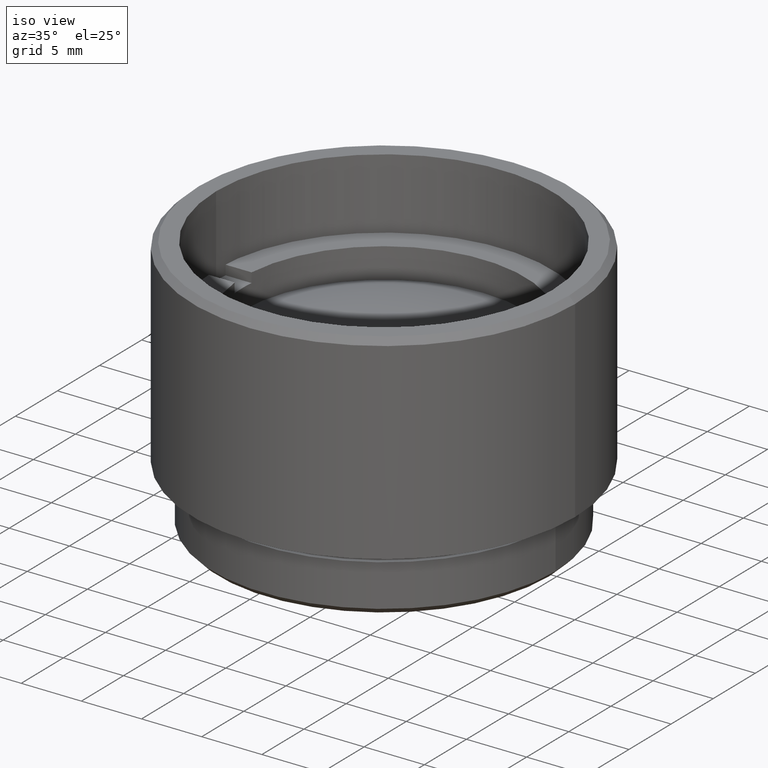
[diagram: clean part render]
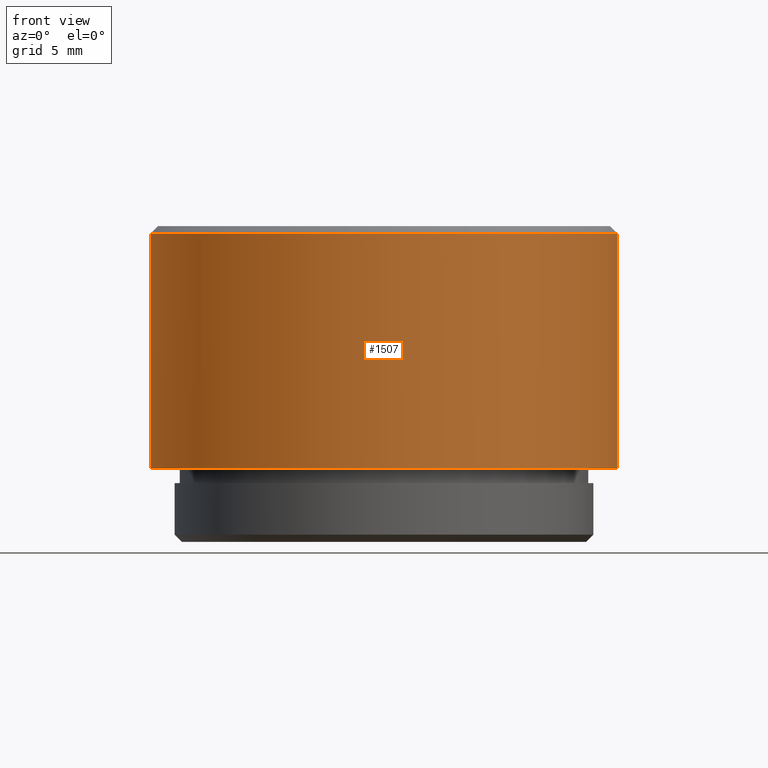
[diagram: tour spotlight — one face highlighted and labeled with its STEP entity id]
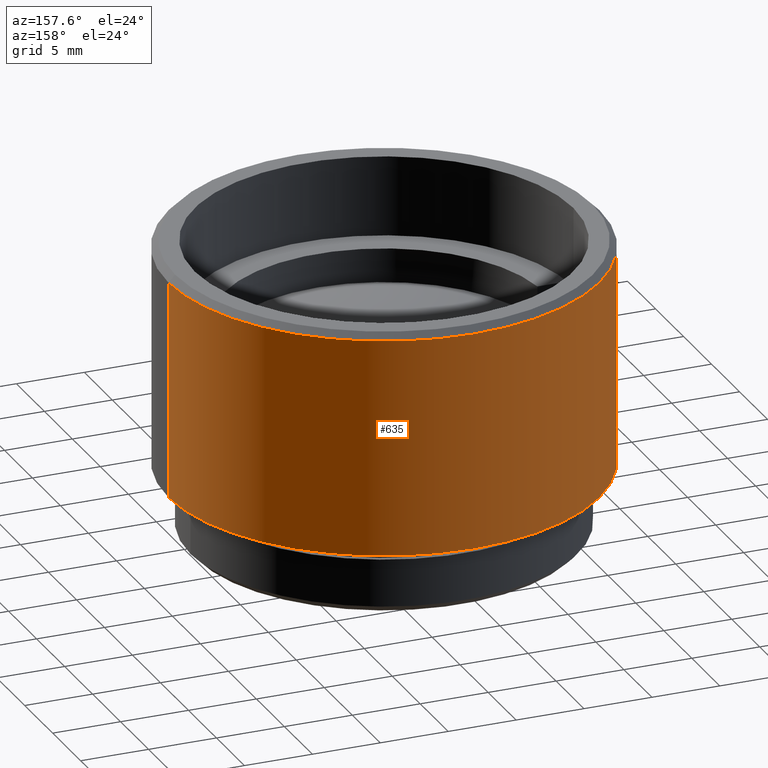
[diagram: tour spotlight — one face highlighted and labeled with its STEP entity id]
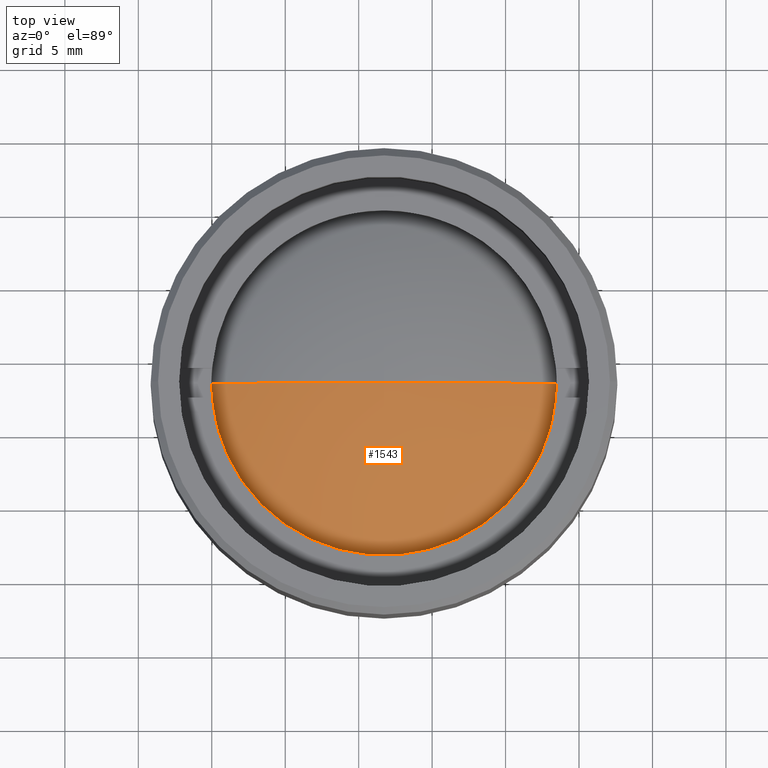
[diagram: tour spotlight — one face highlighted and labeled with its STEP entity id]
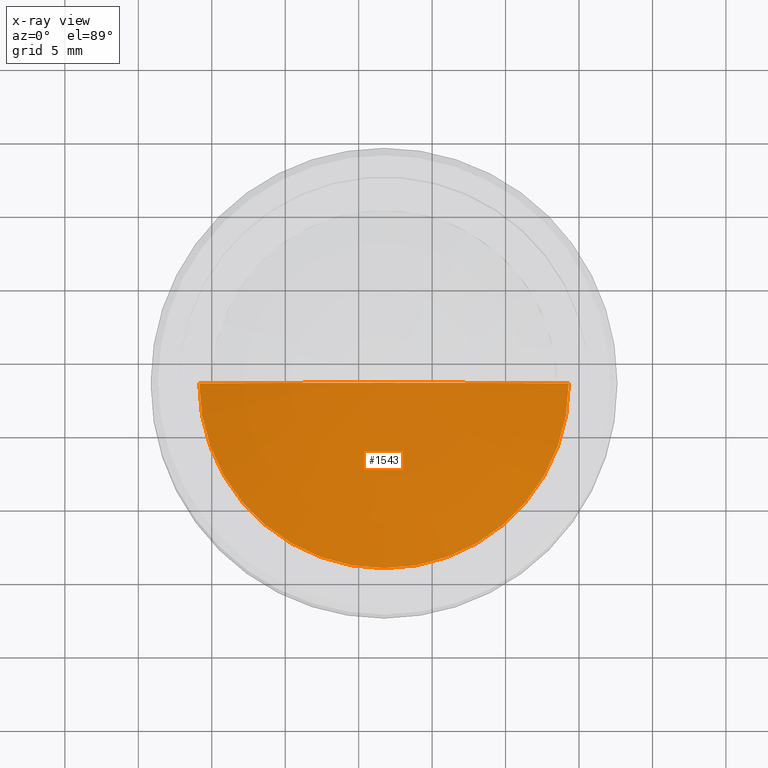
[diagram: x-ray of the same camera — body ghosted, this tour face saturated]
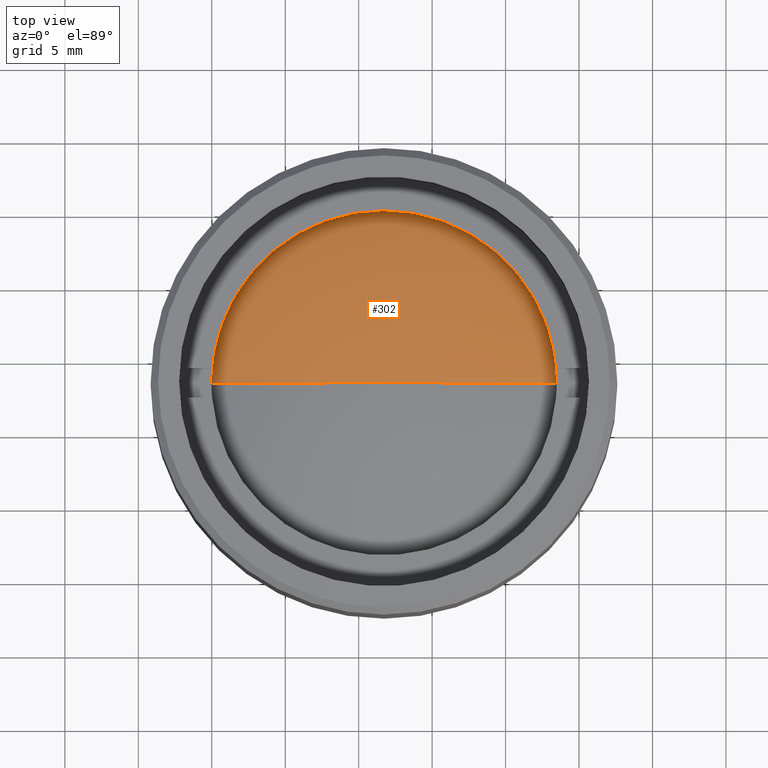
[diagram: tour spotlight — one face highlighted and labeled with its STEP entity id]
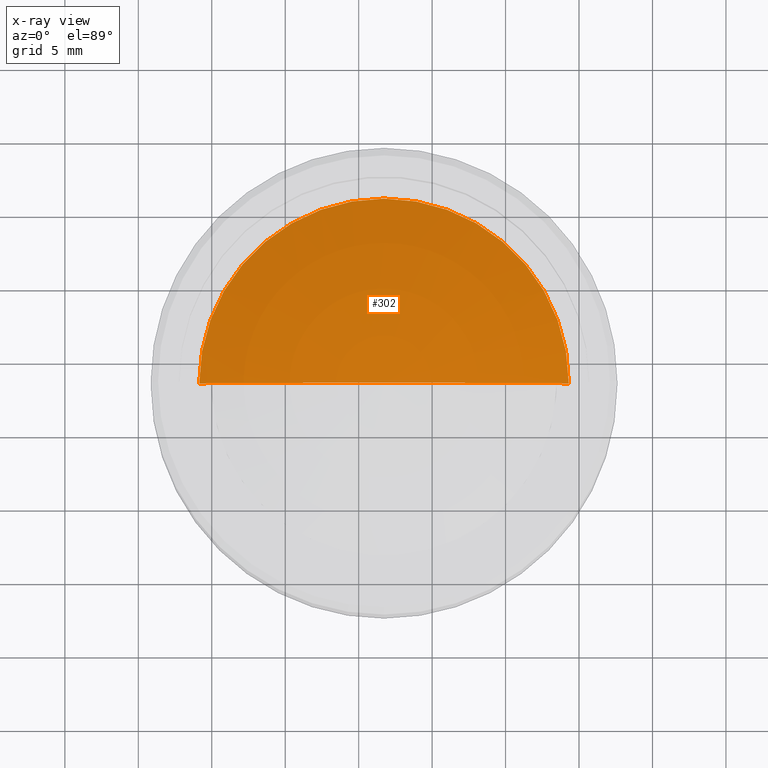
[diagram: x-ray of the same camera — body ghosted, this tour face saturated]
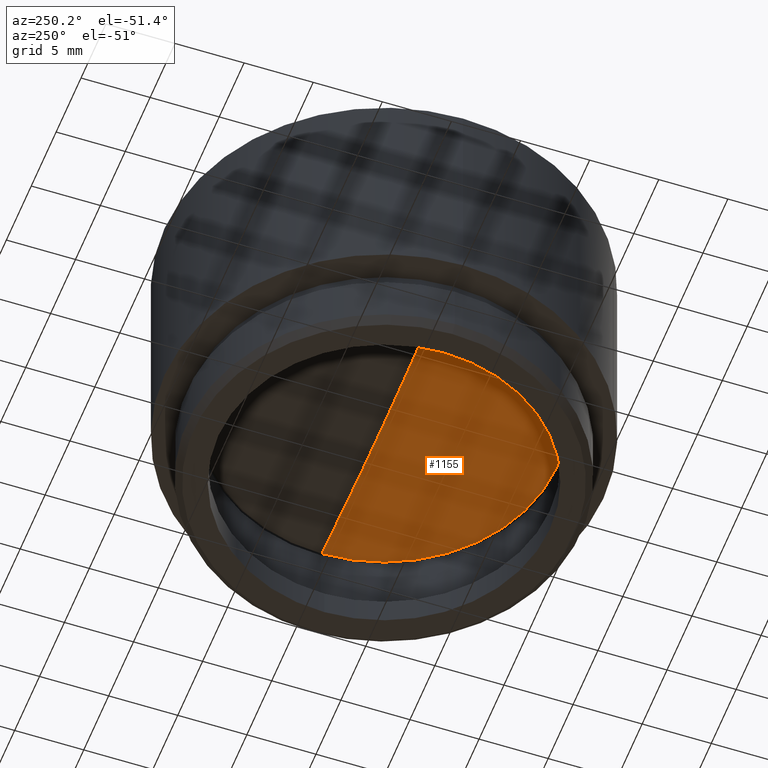
[diagram: tour spotlight — one face highlighted and labeled with its STEP entity id]
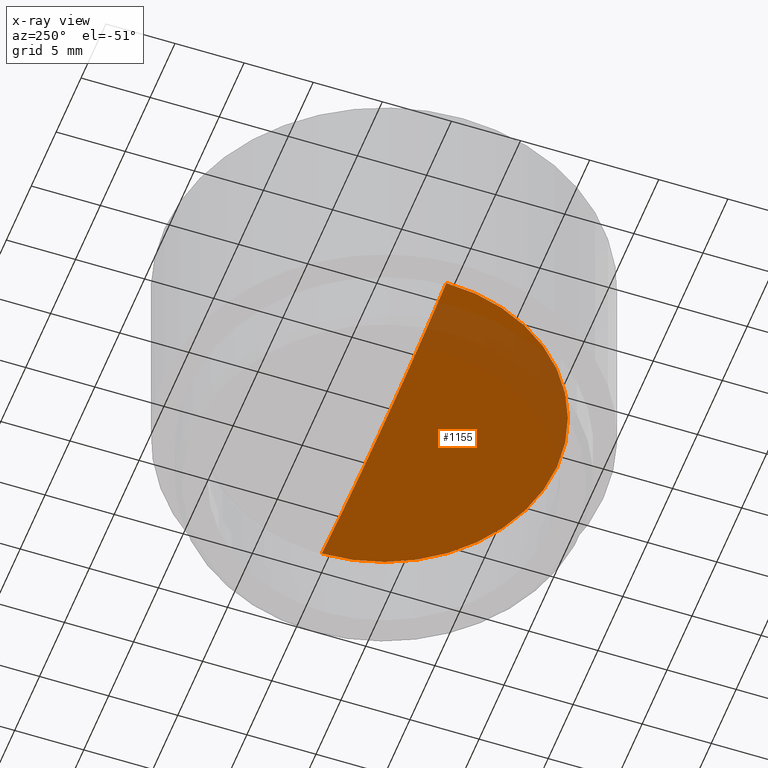
[diagram: x-ray of the same camera — body ghosted, this tour face saturated]
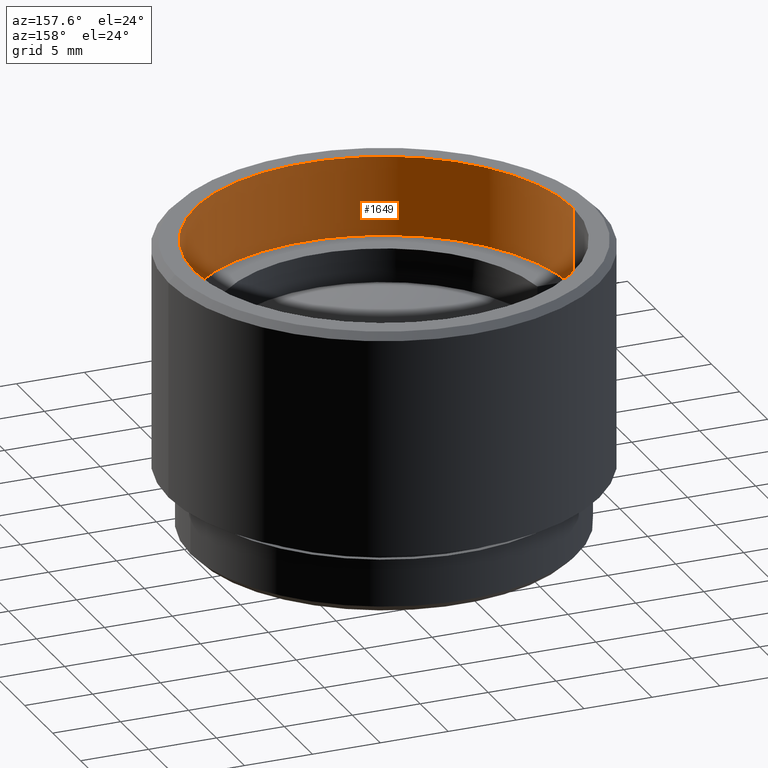
[diagram: tour spotlight — one face highlighted and labeled with its STEP entity id]
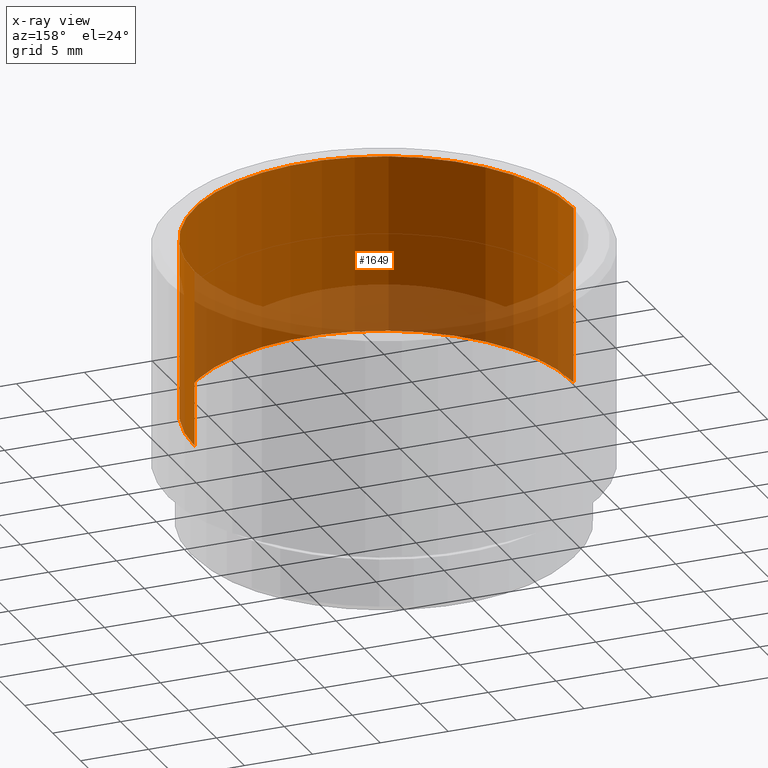
[diagram: x-ray of the same camera — body ghosted, this tour face saturated]
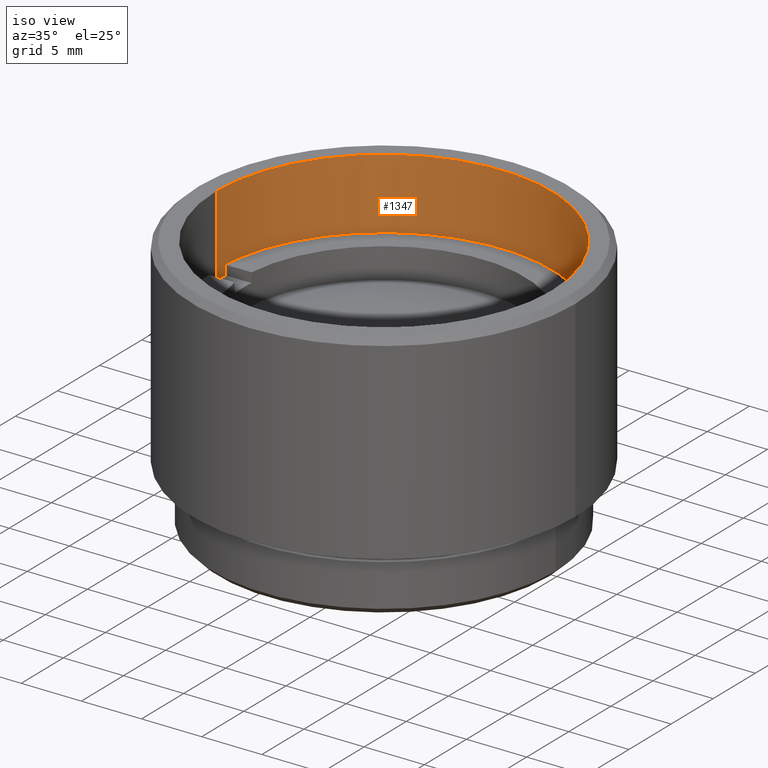
[diagram: tour spotlight — one face highlighted and labeled with its STEP entity id]
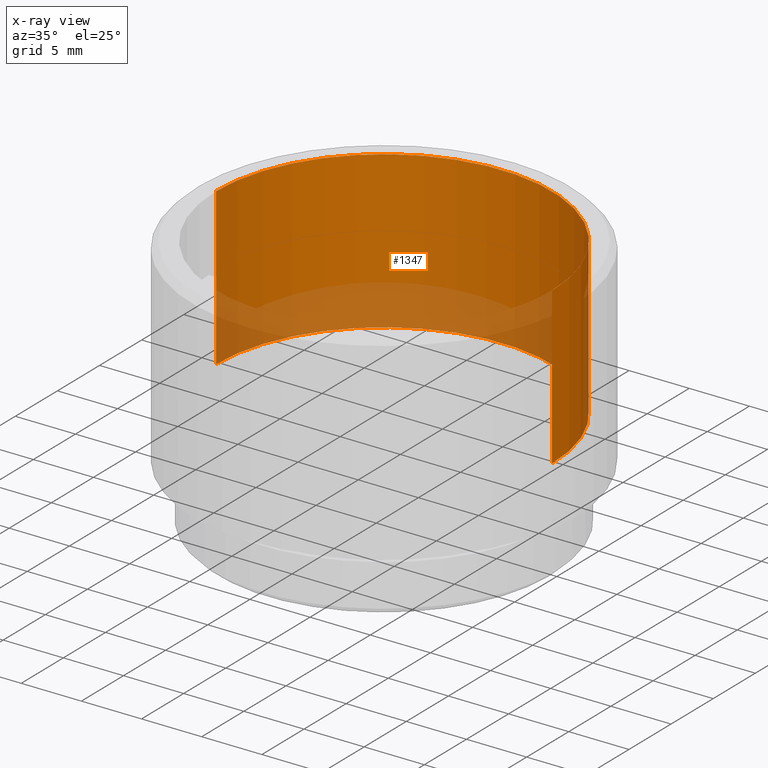
[diagram: x-ray of the same camera — body ghosted, this tour face saturated]
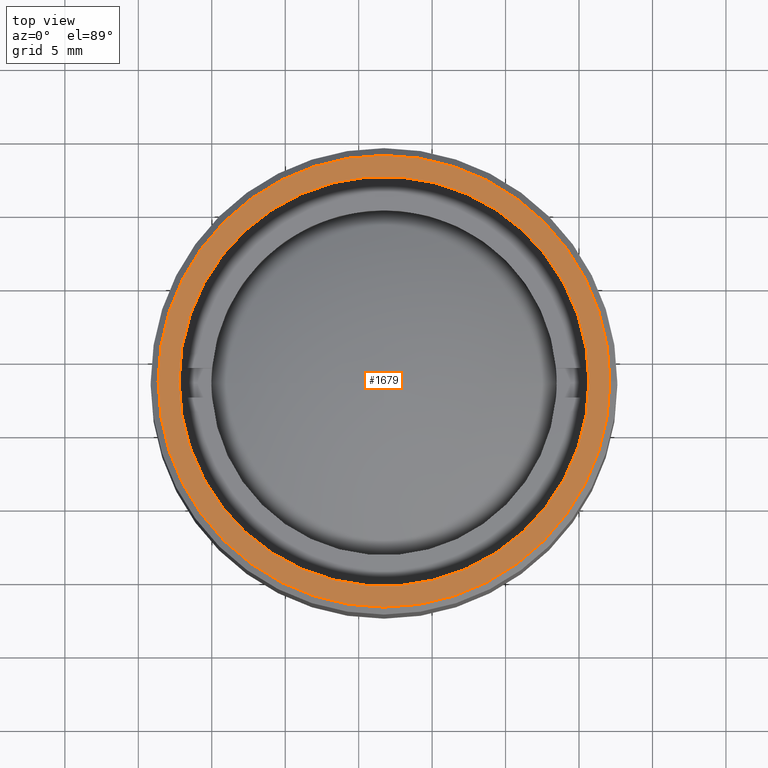
[diagram: tour spotlight — one face highlighted and labeled with its STEP entity id]
A machine part: a face-by-face anatomy tour. The part has 56 B-rep faces; the first image is the clean iso view, then the 8 largest visible faces are spotlighted one at a time (largest first), each with its STEP entity span.

Face 1 — front view, entity #1507. In plain terms, the highlighted cylindrical surface (partial cylindrical patch) has radius 15.878 mm, axis along (-0, -0, -1).
Definition (entity closure, byte-faithful):
#19 = VECTOR ( 'NONE', #1504, 1000.000000000000000 ) ;
#21 = EDGE_LOOP ( 'NONE', ( #690, #1420, #1571, #1014 ) ) ;
#88 = CARTESIAN_POINT ( 'NONE',  ( 0.000000000000000000, 0.000000000000000000, 21.50000000000000000 ) ) ;
#147 = CARTESIAN_POINT ( 'NONE',  ( 15.87800000000000011, 1.944494187686167431E-15, 20.99999999999999289 ) ) ;
#157 = DIRECTION ( 'NONE',  ( -1.000000000000000000, 0.000000000000000000, 0.000000000000000000 ) ) ;
#196 = CARTESIAN_POINT ( 'NONE',  ( 15.87800000000000011, 1.944494187686167431E-15, 5.000000000000000000 ) ) ;
#249 = EDGE_CURVE ( 'NONE', #1606, #1302, #1511, .T. ) ;
#296 = CARTESIAN_POINT ( 'NONE',  ( 0.000000000000000000, 0.000000000000000000, 5.000000000000000000 ) ) ;
#379 = DIRECTION ( 'NONE',  ( 0.000000000000000000, 0.000000000000000000, -1.000000000000000000 ) ) ;
#396 = DIRECTION ( 'NONE',  ( 1.000000000000000000, 0.000000000000000000, 0.000000000000000000 ) ) ;
#440 = AXIS2_PLACEMENT_3D ( 'NONE', #296, #846, #157 ) ;
#469 = AXIS2_PLACEMENT_3D ( 'NONE', #88, #1278, #1003 ) ;
#624 = CIRCLE ( 'NONE', #440, 15.87800000000000011 ) ;
#690 = ORIENTED_EDGE ( 'NONE', *, *, #249, .F. ) ;
#706 = CARTESIAN_POINT ( 'NONE',  ( -15.87800000000000011, 0.000000000000000000, 21.50000000000000000 ) ) ;
#729 = CARTESIAN_POINT ( 'NONE',  ( 15.87800000000000011, 1.944494187686167431E-15, 21.50000000000000000 ) ) ;
#734 = VECTOR ( 'NONE', #1633, 1000.000000000000000 ) ;
#772 = CARTESIAN_POINT ( 'NONE',  ( -15.87800000000000011, 0.000000000000000000, 20.99999999999999289 ) ) ;
#846 = DIRECTION ( 'NONE',  ( 0.000000000000000000, 0.000000000000000000, -1.000000000000000000 ) ) ;
#906 = CARTESIAN_POINT ( 'NONE',  ( 0.000000000000000000, 0.000000000000000000, 20.99999999999999289 ) ) ;
#1003 = DIRECTION ( 'NONE',  ( -1.000000000000000000, 0.000000000000000000, 0.000000000000000000 ) ) ;
#1012 = EDGE_CURVE ( 'NONE', #1302, #1301, #624, .T. ) ;
#1014 = ORIENTED_EDGE ( 'NONE', *, *, #1012, .F. ) ;
#1059 = EDGE_CURVE ( 'NONE', #1585, #1301, #1488, .T. ) ;
#1226 = CIRCLE ( 'NONE', #1296, 15.87800000000000011 ) ;
#1278 = DIRECTION ( 'NONE',  ( -0.000000000000000000, -0.000000000000000000, -1.000000000000000000 ) ) ;
#1280 = EDGE_CURVE ( 'NONE', #1606, #1585, #1226, .T. ) ;
#1296 = AXIS2_PLACEMENT_3D ( 'NONE', #906, #379, #396 ) ;
#1301 = VERTEX_POINT ( 'NONE', #1510 ) ;
#1302 = VERTEX_POINT ( 'NONE', #196 ) ;
#1420 = ORIENTED_EDGE ( 'NONE', *, *, #1280, .T. ) ;
#1488 = LINE ( 'NONE', #706, #734 ) ;
#1504 = DIRECTION ( 'NONE',  ( -0.000000000000000000, -0.000000000000000000, -1.000000000000000000 ) ) ;
#1507 = ADVANCED_FACE ( 'NONE', ( #1539 ), #1694, .T. ) ;
#1510 = CARTESIAN_POINT ( 'NONE',  ( -15.87800000000000011, 0.000000000000000000, 5.000000000000000000 ) ) ;
#1511 = LINE ( 'NONE', #729, #19 ) ;
#1539 = FACE_OUTER_BOUND ( 'NONE', #21, .T. ) ;
#1571 = ORIENTED_EDGE ( 'NONE', *, *, #1059, .T. ) ;
#1585 = VERTEX_POINT ( 'NONE', #772 ) ;
#1606 = VERTEX_POINT ( 'NONE', #147 ) ;
#1633 = DIRECTION ( 'NONE',  ( -0.000000000000000000, -0.000000000000000000, -1.000000000000000000 ) ) ;
#1694 = CYLINDRICAL_SURFACE ( 'NONE', #469, 15.87800000000000011 ) ;

Face 2 — auxiliary view, entity #635. In plain terms, the highlighted cylindrical surface (partial cylindrical patch) has radius 15.878 mm, axis along (-0, -0, -1).
Definition (entity closure, byte-faithful):
#19 = VECTOR ( 'NONE', #1504, 1000.000000000000000 ) ;
#147 = CARTESIAN_POINT ( 'NONE',  ( 15.87800000000000011, 1.944494187686167431E-15, 20.99999999999999289 ) ) ;
#196 = CARTESIAN_POINT ( 'NONE',  ( 15.87800000000000011, 1.944494187686167431E-15, 5.000000000000000000 ) ) ;
#249 = EDGE_CURVE ( 'NONE', #1606, #1302, #1511, .T. ) ;
#290 = EDGE_CURVE ( 'NONE', #1301, #1302, #474, .T. ) ;
#352 = AXIS2_PLACEMENT_3D ( 'NONE', #496, #378, #1660 ) ;
#378 = DIRECTION ( 'NONE',  ( 0.000000000000000000, 0.000000000000000000, -1.000000000000000000 ) ) ;
#474 = CIRCLE ( 'NONE', #1417, 15.87800000000000011 ) ;
#480 = DIRECTION ( 'NONE',  ( 0.000000000000000000, 0.000000000000000000, -1.000000000000000000 ) ) ;
#489 = CARTESIAN_POINT ( 'NONE',  ( 0.000000000000000000, 0.000000000000000000, 21.50000000000000000 ) ) ;
#496 = CARTESIAN_POINT ( 'NONE',  ( 0.000000000000000000, 0.000000000000000000, 20.99999999999999289 ) ) ;
#579 = ORIENTED_EDGE ( 'NONE', *, *, #1059, .F. ) ;
#614 = DIRECTION ( 'NONE',  ( -0.000000000000000000, -0.000000000000000000, -1.000000000000000000 ) ) ;
#635 = ADVANCED_FACE ( 'NONE', ( #1513 ), #853, .T. ) ;
#706 = CARTESIAN_POINT ( 'NONE',  ( -15.87800000000000011, 0.000000000000000000, 21.50000000000000000 ) ) ;
#729 = CARTESIAN_POINT ( 'NONE',  ( 15.87800000000000011, 1.944494187686167431E-15, 21.50000000000000000 ) ) ;
#734 = VECTOR ( 'NONE', #1633, 1000.000000000000000 ) ;
#741 = DIRECTION ( 'NONE',  ( -1.000000000000000000, 0.000000000000000000, 0.000000000000000000 ) ) ;
#756 = ORIENTED_EDGE ( 'NONE', *, *, #1471, .T. ) ;
#764 = AXIS2_PLACEMENT_3D ( 'NONE', #489, #614, #741 ) ;
#772 = CARTESIAN_POINT ( 'NONE',  ( -15.87800000000000011, 0.000000000000000000, 20.99999999999999289 ) ) ;
#776 = EDGE_LOOP ( 'NONE', ( #756, #1243, #1193, #579 ) ) ;
#853 = CYLINDRICAL_SURFACE ( 'NONE', #764, 15.87800000000000011 ) ;
#988 = DIRECTION ( 'NONE',  ( -1.000000000000000000, 0.000000000000000000, 0.000000000000000000 ) ) ;
#997 = CIRCLE ( 'NONE', #352, 15.87800000000000011 ) ;
#1059 = EDGE_CURVE ( 'NONE', #1585, #1301, #1488, .T. ) ;
#1119 = CARTESIAN_POINT ( 'NONE',  ( 0.000000000000000000, 0.000000000000000000, 5.000000000000000000 ) ) ;
#1193 = ORIENTED_EDGE ( 'NONE', *, *, #290, .F. ) ;
#1243 = ORIENTED_EDGE ( 'NONE', *, *, #249, .T. ) ;
#1301 = VERTEX_POINT ( 'NONE', #1510 ) ;
#1302 = VERTEX_POINT ( 'NONE', #196 ) ;
#1417 = AXIS2_PLACEMENT_3D ( 'NONE', #1119, #480, #988 ) ;
#1471 = EDGE_CURVE ( 'NONE', #1585, #1606, #997, .T. ) ;
#1488 = LINE ( 'NONE', #706, #734 ) ;
#1504 = DIRECTION ( 'NONE',  ( -0.000000000000000000, -0.000000000000000000, -1.000000000000000000 ) ) ;
#1510 = CARTESIAN_POINT ( 'NONE',  ( -15.87800000000000011, 0.000000000000000000, 5.000000000000000000 ) ) ;
#1511 = LINE ( 'NONE', #729, #19 ) ;
#1513 = FACE_OUTER_BOUND ( 'NONE', #776, .T. ) ;
#1585 = VERTEX_POINT ( 'NONE', #772 ) ;
#1606 = VERTEX_POINT ( 'NONE', #147 ) ;
#1633 = DIRECTION ( 'NONE',  ( -0.000000000000000000, -0.000000000000000000, -1.000000000000000000 ) ) ;
#1660 = DIRECTION ( 'NONE',  ( 1.000000000000000000, 0.000000000000000000, 0.000000000000000000 ) ) ;

Face 3 — top view, entity #1543. An x-ray twin of the same camera follows (body ghosted, this face saturated) — the face is partly hidden behind the body. In plain terms, the highlighted spherical surface has radius 31.2 mm.
Definition (entity closure, byte-faithful):
#25 = VERTEX_POINT ( 'NONE', #170 ) ;
#102 = SPHERICAL_SURFACE ( 'NONE', #221, 31.19999999999999929 ) ;
#170 = CARTESIAN_POINT ( 'NONE',  ( 12.58064516129032029, 1.547993058857710059E-15, -2.648863992378474919 ) ) ;
#205 = CARTESIAN_POINT ( 'NONE',  ( -12.58064516129032029, 0.000000000000000000, -2.648863992378474919 ) ) ;
#221 = AXIS2_PLACEMENT_3D ( 'NONE', #1685, #625, #1554 ) ;
#247 = CARTESIAN_POINT ( 'NONE',  ( 0.000000000000000000, 0.000000000000000000, -31.19999999999999929 ) ) ;
#380 = AXIS2_PLACEMENT_3D ( 'NONE', #1634, #700, #1107 ) ;
#507 = EDGE_CURVE ( 'NONE', #1158, #25, #1275, .T. ) ;
#625 = DIRECTION ( 'NONE',  ( 0.000000000000000000, -0.000000000000000000, 1.000000000000000000 ) ) ;
#648 = FACE_OUTER_BOUND ( 'NONE', #1573, .T. ) ;
#700 = DIRECTION ( 'NONE',  ( -6.894413814779619330E-17, 0.000000000000000000, 1.000000000000000000 ) ) ;
#953 = ORIENTED_EDGE ( 'NONE', *, *, #507, .T. ) ;
#1107 = DIRECTION ( 'NONE',  ( -1.000000000000000000, 0.000000000000000000, -6.894413814779619330E-17 ) ) ;
#1158 = VERTEX_POINT ( 'NONE', #205 ) ;
#1275 = CIRCLE ( 'NONE', #380, 12.58064516129032029 ) ;
#1361 = AXIS2_PLACEMENT_3D ( 'NONE', #247, #1407, #1434 ) ;
#1407 = DIRECTION ( 'NONE',  ( 0.000000000000000000, -1.000000000000000000, 0.000000000000000000 ) ) ;
#1424 = ORIENTED_EDGE ( 'NONE', *, *, #1461, .T. ) ;
#1434 = DIRECTION ( 'NONE',  ( 0.000000000000000000, 0.000000000000000000, -1.000000000000000000 ) ) ;
#1436 = CIRCLE ( 'NONE', #1361, 31.19999999999999929 ) ;
#1461 = EDGE_CURVE ( 'NONE', #25, #1158, #1436, .T. ) ;
#1543 = ADVANCED_FACE ( 'NONE', ( #648 ), #102, .T. ) ;
#1554 = DIRECTION ( 'NONE',  ( -1.000000000000000000, 0.000000000000000000, 0.000000000000000000 ) ) ;
#1573 = EDGE_LOOP ( 'NONE', ( #953, #1424 ) ) ;
#1634 = CARTESIAN_POINT ( 'NONE',  ( -1.498502456732328041E-15, 0.000000000000000000, -2.648863992378474919 ) ) ;
#1685 = CARTESIAN_POINT ( 'NONE',  ( 0.000000000000000000, 0.000000000000000000, -31.19999999999999929 ) ) ;

Face 4 — top view, entity #302. An x-ray twin of the same camera follows (body ghosted, this face saturated) — the face is partly hidden behind the body. In plain terms, the highlighted spherical surface has radius 31.2 mm.
Definition (entity closure, byte-faithful):
#5 = EDGE_LOOP ( 'NONE', ( #986, #1333 ) ) ;
#25 = VERTEX_POINT ( 'NONE', #170 ) ;
#97 = EDGE_CURVE ( 'NONE', #25, #1158, #385, .T. ) ;
#170 = CARTESIAN_POINT ( 'NONE',  ( 12.58064516129032029, 1.547993058857710059E-15, -2.648863992378474919 ) ) ;
#204 = DIRECTION ( 'NONE',  ( 0.000000000000000000, -0.000000000000000000, 1.000000000000000000 ) ) ;
#205 = CARTESIAN_POINT ( 'NONE',  ( -12.58064516129032029, 0.000000000000000000, -2.648863992378474919 ) ) ;
#247 = CARTESIAN_POINT ( 'NONE',  ( 0.000000000000000000, 0.000000000000000000, -31.19999999999999929 ) ) ;
#302 = ADVANCED_FACE ( 'NONE', ( #974 ), #858, .T. ) ;
#385 = CIRCLE ( 'NONE', #1343, 12.58064516129032029 ) ;
#448 = DIRECTION ( 'NONE',  ( -6.894413814779619330E-17, 0.000000000000000000, 1.000000000000000000 ) ) ;
#824 = CARTESIAN_POINT ( 'NONE',  ( -1.498502456732328041E-15, 0.000000000000000000, -2.648863992378474919 ) ) ;
#845 = DIRECTION ( 'NONE',  ( -1.000000000000000000, 0.000000000000000000, 0.000000000000000000 ) ) ;
#858 = SPHERICAL_SURFACE ( 'NONE', #981, 31.19999999999999929 ) ;
#974 = FACE_OUTER_BOUND ( 'NONE', #5, .T. ) ;
#981 = AXIS2_PLACEMENT_3D ( 'NONE', #1384, #204, #845 ) ;
#986 = ORIENTED_EDGE ( 'NONE', *, *, #1461, .F. ) ;
#1158 = VERTEX_POINT ( 'NONE', #205 ) ;
#1333 = ORIENTED_EDGE ( 'NONE', *, *, #97, .T. ) ;
#1343 = AXIS2_PLACEMENT_3D ( 'NONE', #824, #448, #1590 ) ;
#1361 = AXIS2_PLACEMENT_3D ( 'NONE', #247, #1407, #1434 ) ;
#1384 = CARTESIAN_POINT ( 'NONE',  ( 0.000000000000000000, 0.000000000000000000, -31.19999999999999929 ) ) ;
#1407 = DIRECTION ( 'NONE',  ( 0.000000000000000000, -1.000000000000000000, 0.000000000000000000 ) ) ;
#1434 = DIRECTION ( 'NONE',  ( 0.000000000000000000, 0.000000000000000000, -1.000000000000000000 ) ) ;
#1436 = CIRCLE ( 'NONE', #1361, 31.19999999999999929 ) ;
#1461 = EDGE_CURVE ( 'NONE', #25, #1158, #1436, .T. ) ;
#1590 = DIRECTION ( 'NONE',  ( -1.000000000000000000, 0.000000000000000000, -6.894413814779619330E-17 ) ) ;

Face 5 — auxiliary view, entity #1155. An x-ray twin of the same camera follows (body ghosted, this face saturated) — the face is partly hidden behind the body. In plain terms, the highlighted toroidal blend (fillet) surface has major radius 0.2121 mm and minor (blend) radius 130.6 mm.
Definition (entity closure, byte-faithful):
#24 = VERTEX_POINT ( 'NONE', #311 ) ;
#67 = CARTESIAN_POINT ( 'NONE',  ( 0.000000000000000000, 0.000000000000000000, -8.419028659537071135 ) ) ;
#99 = DIRECTION ( 'NONE',  ( 1.000000000000000000, 0.000000000000000000, 0.000000000000000000 ) ) ;
#139 = VERTEX_POINT ( 'NONE', #1328 ) ;
#173 = DIRECTION ( 'NONE',  ( 0.000000000000000000, -1.000000000000000000, 0.000000000000000000 ) ) ;
#180 = TOROIDAL_SURFACE ( 'NONE', #1137, 0.2120615537798939965, 130.5999999999999943 ) ;
#198 = CARTESIAN_POINT ( 'NONE',  ( 12.51884653135922143, 0.000000000000000000, -8.419028659537071135 ) ) ;
#222 = FACE_OUTER_BOUND ( 'NONE', #780, .T. ) ;
#311 = CARTESIAN_POINT ( 'NONE',  ( -12.51884653135922143, 1.544208984140870014E-15, -8.419028659537071135 ) ) ;
#344 = DIRECTION ( 'NONE',  ( 0.000000000000000000, 0.000000000000000000, 1.000000000000000000 ) ) ;
#345 = DIRECTION ( 'NONE',  ( 0.000000000000000000, 0.000000000000000000, -1.000000000000000000 ) ) ;
#362 = DIRECTION ( 'NONE',  ( 1.000000000000000000, 0.000000000000000000, 0.000000000000000000 ) ) ;
#383 = ORIENTED_EDGE ( 'NONE', *, *, #1139, .F. ) ;
#488 = DIRECTION ( 'NONE',  ( 0.000000000000000000, 0.000000000000000000, -1.000000000000000000 ) ) ;
#615 = EDGE_CURVE ( 'NONE', #1262, #24, #1115, .T. ) ;
#746 = DIRECTION ( 'NONE',  ( 1.224646799147351975E-16, 1.000000000000000000, 0.000000000000000000 ) ) ;
#759 = AXIS2_PLACEMENT_3D ( 'NONE', #67, #345, #362 ) ;
#780 = EDGE_LOOP ( 'NONE', ( #383, #1423, #1382 ) ) ;
#984 = CARTESIAN_POINT ( 'NONE',  ( 0.000000000000000000, 0.000000000000000000, 121.5998278325718047 ) ) ;
#999 = DIRECTION ( 'NONE',  ( -1.000000000000000000, 1.224646799147351728E-16, 0.000000000000000000 ) ) ;
#1115 = CIRCLE ( 'NONE', #759, 12.51884653135922143 ) ;
#1123 = EDGE_CURVE ( 'NONE', #139, #1262, #1584, .T. ) ;
#1137 = AXIS2_PLACEMENT_3D ( 'NONE', #984, #344, #99 ) ;
#1139 = EDGE_CURVE ( 'NONE', #139, #24, #1387, .T. ) ;
#1155 = ADVANCED_FACE ( 'NONE', ( #222 ), #180, .T. ) ;
#1164 = AXIS2_PLACEMENT_3D ( 'NONE', #1356, #173, #488 ) ;
#1262 = VERTEX_POINT ( 'NONE', #198 ) ;
#1328 = CARTESIAN_POINT ( 'NONE',  ( -2.496375502147874906E-14, 0.000000000000000000, -9.000000000000000000 ) ) ;
#1356 = CARTESIAN_POINT ( 'NONE',  ( 0.2120615537798939965, 0.000000000000000000, 121.5998278325718047 ) ) ;
#1382 = ORIENTED_EDGE ( 'NONE', *, *, #615, .T. ) ;
#1386 = CARTESIAN_POINT ( 'NONE',  ( -0.2120615537798939965, 2.597005030587615366E-17, 121.5998278325718047 ) ) ;
#1387 = CIRCLE ( 'NONE', #1665, 130.5999999999999943 ) ;
#1423 = ORIENTED_EDGE ( 'NONE', *, *, #1123, .T. ) ;
#1584 = CIRCLE ( 'NONE', #1164, 130.5999999999999943 ) ;
#1665 = AXIS2_PLACEMENT_3D ( 'NONE', #1386, #746, #999 ) ;

Face 6 — auxiliary view, entity #1649. An x-ray twin of the same camera follows (body ghosted, this face saturated) — the face is partly hidden behind the body. In plain terms, the highlighted cylindrical surface (partial cylindrical patch) has radius 13.95 mm, axis along (0, 0, 1).
Definition (entity closure, byte-faithful):
#6 = DIRECTION ( 'NONE',  ( -0.000000000000000000, -0.000000000000000000, 1.000000000000000000 ) ) ;
#64 = CARTESIAN_POINT ( 'NONE',  ( 0.000000000000000000, 0.000000000000000000, 8.499999999999996447 ) ) ;
#82 = AXIS2_PLACEMENT_3D ( 'NONE', #430, #6, #272 ) ;
#123 = CARTESIAN_POINT ( 'NONE',  ( 13.94999999999999929, 0.000000000000000000, 8.499999999999996447 ) ) ;
#218 = CARTESIAN_POINT ( 'NONE',  ( 13.94999999999999929, 0.000000000000000000, 21.50000000000000000 ) ) ;
#248 = EDGE_CURVE ( 'NONE', #781, #1610, #1111, .T. ) ;
#272 = DIRECTION ( 'NONE',  ( 1.000000000000000000, 0.000000000000000000, 0.000000000000000000 ) ) ;
#430 = CARTESIAN_POINT ( 'NONE',  ( 0.000000000000000000, 0.000000000000000000, 6.999999999999997335 ) ) ;
#558 = DIRECTION ( 'NONE',  ( 0.000000000000000000, 0.000000000000000000, 1.000000000000000000 ) ) ;
#630 = VECTOR ( 'NONE', #1396, 1000.000000000000000 ) ;
#657 = EDGE_LOOP ( 'NONE', ( #1541, #1514, #1553, #1344 ) ) ;
#709 = VECTOR ( 'NONE', #1525, 1000.000000000000000 ) ;
#781 = VERTEX_POINT ( 'NONE', #1415 ) ;
#850 = DIRECTION ( 'NONE',  ( -0.000000000000000000, -0.000000000000000000, -1.000000000000000000 ) ) ;
#852 = CARTESIAN_POINT ( 'NONE',  ( 13.94999999999999929, 0.000000000000000000, 6.999999999999997335 ) ) ;
#859 = LINE ( 'NONE', #852, #709 ) ;
#865 = CARTESIAN_POINT ( 'NONE',  ( -13.94999999999999929, 1.708382284810557368E-15, 6.999999999999997335 ) ) ;
#882 = EDGE_CURVE ( 'NONE', #1610, #1563, #1079, .T. ) ;
#919 = CIRCLE ( 'NONE', #1084, 13.94999999999999929 ) ;
#1047 = DIRECTION ( 'NONE',  ( 1.000000000000000000, 0.000000000000000000, 0.000000000000000000 ) ) ;
#1079 = CIRCLE ( 'NONE', #1632, 13.94999999999999929 ) ;
#1084 = AXIS2_PLACEMENT_3D ( 'NONE', #64, #850, #1379 ) ;
#1111 = LINE ( 'NONE', #865, #630 ) ;
#1185 = CYLINDRICAL_SURFACE ( 'NONE', #82, 13.94999999999999929 ) ;
#1234 = EDGE_CURVE ( 'NONE', #1559, #1563, #859, .T. ) ;
#1317 = CARTESIAN_POINT ( 'NONE',  ( 0.000000000000000000, 0.000000000000000000, 21.50000000000000000 ) ) ;
#1324 = CARTESIAN_POINT ( 'NONE',  ( -13.94999999999999929, 1.708382284810557368E-15, 21.50000000000000000 ) ) ;
#1344 = ORIENTED_EDGE ( 'NONE', *, *, #1234, .F. ) ;
#1379 = DIRECTION ( 'NONE',  ( 1.000000000000000000, 0.000000000000000000, 0.000000000000000000 ) ) ;
#1396 = DIRECTION ( 'NONE',  ( -0.000000000000000000, -0.000000000000000000, 1.000000000000000000 ) ) ;
#1397 = EDGE_CURVE ( 'NONE', #1559, #781, #919, .T. ) ;
#1415 = CARTESIAN_POINT ( 'NONE',  ( -13.94999999999999929, 1.708382284810557368E-15, 8.499999999999996447 ) ) ;
#1514 = ORIENTED_EDGE ( 'NONE', *, *, #248, .T. ) ;
#1525 = DIRECTION ( 'NONE',  ( -0.000000000000000000, -0.000000000000000000, 1.000000000000000000 ) ) ;
#1541 = ORIENTED_EDGE ( 'NONE', *, *, #1397, .T. ) ;
#1553 = ORIENTED_EDGE ( 'NONE', *, *, #882, .T. ) ;
#1559 = VERTEX_POINT ( 'NONE', #123 ) ;
#1563 = VERTEX_POINT ( 'NONE', #218 ) ;
#1597 = FACE_OUTER_BOUND ( 'NONE', #657, .T. ) ;
#1610 = VERTEX_POINT ( 'NONE', #1324 ) ;
#1632 = AXIS2_PLACEMENT_3D ( 'NONE', #1317, #558, #1047 ) ;
#1649 = ADVANCED_FACE ( 'NONE', ( #1597 ), #1185, .F. ) ;

Face 7 — iso view, entity #1347. An x-ray twin of the same camera follows (body ghosted, this face saturated) — the face is partly hidden behind the body. In plain terms, the highlighted cylindrical surface (partial cylindrical patch) has radius 13.95 mm, axis along (0, 0, 1).
Definition (entity closure, byte-faithful):
#55 = ORIENTED_EDGE ( 'NONE', *, *, #248, .F. ) ;
#79 = DIRECTION ( 'NONE',  ( -0.000000000000000000, -0.000000000000000000, 1.000000000000000000 ) ) ;
#123 = CARTESIAN_POINT ( 'NONE',  ( 13.94999999999999929, 0.000000000000000000, 8.499999999999996447 ) ) ;
#218 = CARTESIAN_POINT ( 'NONE',  ( 13.94999999999999929, 0.000000000000000000, 21.50000000000000000 ) ) ;
#248 = EDGE_CURVE ( 'NONE', #781, #1610, #1111, .T. ) ;
#256 = ORIENTED_EDGE ( 'NONE', *, *, #566, .T. ) ;
#318 = CIRCLE ( 'NONE', #570, 13.94999999999999929 ) ;
#348 = CARTESIAN_POINT ( 'NONE',  ( 0.000000000000000000, 0.000000000000000000, 6.999999999999997335 ) ) ;
#353 = CARTESIAN_POINT ( 'NONE',  ( 0.000000000000000000, 0.000000000000000000, 21.50000000000000000 ) ) ;
#369 = DIRECTION ( 'NONE',  ( 1.000000000000000000, 0.000000000000000000, 0.000000000000000000 ) ) ;
#463 = FACE_OUTER_BOUND ( 'NONE', #1562, .T. ) ;
#468 = CIRCLE ( 'NONE', #1413, 13.94999999999999929 ) ;
#552 = ORIENTED_EDGE ( 'NONE', *, *, #1234, .T. ) ;
#566 = EDGE_CURVE ( 'NONE', #781, #1559, #468, .T. ) ;
#570 = AXIS2_PLACEMENT_3D ( 'NONE', #353, #875, #369 ) ;
#630 = VECTOR ( 'NONE', #1396, 1000.000000000000000 ) ;
#676 = ORIENTED_EDGE ( 'NONE', *, *, #766, .T. ) ;
#709 = VECTOR ( 'NONE', #1525, 1000.000000000000000 ) ;
#766 = EDGE_CURVE ( 'NONE', #1563, #1610, #318, .T. ) ;
#781 = VERTEX_POINT ( 'NONE', #1415 ) ;
#828 = DIRECTION ( 'NONE',  ( -0.000000000000000000, -0.000000000000000000, -1.000000000000000000 ) ) ;
#852 = CARTESIAN_POINT ( 'NONE',  ( 13.94999999999999929, 0.000000000000000000, 6.999999999999997335 ) ) ;
#859 = LINE ( 'NONE', #852, #709 ) ;
#865 = CARTESIAN_POINT ( 'NONE',  ( -13.94999999999999929, 1.708382284810557368E-15, 6.999999999999997335 ) ) ;
#875 = DIRECTION ( 'NONE',  ( 0.000000000000000000, 0.000000000000000000, 1.000000000000000000 ) ) ;
#976 = CARTESIAN_POINT ( 'NONE',  ( 0.000000000000000000, 0.000000000000000000, 8.499999999999996447 ) ) ;
#1110 = DIRECTION ( 'NONE',  ( 1.000000000000000000, 0.000000000000000000, 0.000000000000000000 ) ) ;
#1111 = LINE ( 'NONE', #865, #630 ) ;
#1234 = EDGE_CURVE ( 'NONE', #1559, #1563, #859, .T. ) ;
#1324 = CARTESIAN_POINT ( 'NONE',  ( -13.94999999999999929, 1.708382284810557368E-15, 21.50000000000000000 ) ) ;
#1347 = ADVANCED_FACE ( 'NONE', ( #463 ), #1363, .F. ) ;
#1363 = CYLINDRICAL_SURFACE ( 'NONE', #1664, 13.94999999999999929 ) ;
#1396 = DIRECTION ( 'NONE',  ( -0.000000000000000000, -0.000000000000000000, 1.000000000000000000 ) ) ;
#1413 = AXIS2_PLACEMENT_3D ( 'NONE', #976, #828, #1621 ) ;
#1415 = CARTESIAN_POINT ( 'NONE',  ( -13.94999999999999929, 1.708382284810557368E-15, 8.499999999999996447 ) ) ;
#1525 = DIRECTION ( 'NONE',  ( -0.000000000000000000, -0.000000000000000000, 1.000000000000000000 ) ) ;
#1559 = VERTEX_POINT ( 'NONE', #123 ) ;
#1562 = EDGE_LOOP ( 'NONE', ( #55, #256, #552, #676 ) ) ;
#1563 = VERTEX_POINT ( 'NONE', #218 ) ;
#1610 = VERTEX_POINT ( 'NONE', #1324 ) ;
#1621 = DIRECTION ( 'NONE',  ( 1.000000000000000000, 0.000000000000000000, 0.000000000000000000 ) ) ;
#1664 = AXIS2_PLACEMENT_3D ( 'NONE', #348, #79, #1110 ) ;

Face 8 — top view, entity #1679. In plain terms, the highlighted planar face has unit normal (0, 0, 1).
Definition (entity closure, byte-faithful):
#107 = CIRCLE ( 'NONE', #1292, 15.37800000000000900 ) ;
#218 = CARTESIAN_POINT ( 'NONE',  ( 13.94999999999999929, 0.000000000000000000, 21.50000000000000000 ) ) ;
#251 = DIRECTION ( 'NONE',  ( 1.000000000000000000, 0.000000000000000000, 0.000000000000000000 ) ) ;
#282 = DIRECTION ( 'NONE',  ( 1.000000000000000000, 0.000000000000000000, -0.000000000000000000 ) ) ;
#301 = ORIENTED_EDGE ( 'NONE', *, *, #944, .T. ) ;
#318 = CIRCLE ( 'NONE', #570, 13.94999999999999929 ) ;
#353 = CARTESIAN_POINT ( 'NONE',  ( 0.000000000000000000, 0.000000000000000000, 21.50000000000000000 ) ) ;
#369 = DIRECTION ( 'NONE',  ( 1.000000000000000000, 0.000000000000000000, 0.000000000000000000 ) ) ;
#372 = ORIENTED_EDGE ( 'NONE', *, *, #766, .F. ) ;
#388 = CARTESIAN_POINT ( 'NONE',  ( 0.000000000000000000, 0.000000000000000000, 21.50000000000000000 ) ) ;
#413 = CIRCLE ( 'NONE', #1686, 15.37800000000000900 ) ;
#421 = PLANE ( 'NONE',  #458 ) ;
#458 = AXIS2_PLACEMENT_3D ( 'NONE', #829, #803, #282 ) ;
#513 = EDGE_LOOP ( 'NONE', ( #301, #1027 ) ) ;
#558 = DIRECTION ( 'NONE',  ( 0.000000000000000000, 0.000000000000000000, 1.000000000000000000 ) ) ;
#568 = VERTEX_POINT ( 'NONE', #961 ) ;
#570 = AXIS2_PLACEMENT_3D ( 'NONE', #353, #875, #369 ) ;
#766 = EDGE_CURVE ( 'NONE', #1563, #1610, #318, .T. ) ;
#803 = DIRECTION ( 'NONE',  ( 0.000000000000000000, 0.000000000000000000, 1.000000000000000000 ) ) ;
#829 = CARTESIAN_POINT ( 'NONE',  ( 0.000000000000000000, 0.000000000000000000, 21.50000000000000000 ) ) ;
#875 = DIRECTION ( 'NONE',  ( 0.000000000000000000, 0.000000000000000000, 1.000000000000000000 ) ) ;
#882 = EDGE_CURVE ( 'NONE', #1610, #1563, #1079, .T. ) ;
#896 = DIRECTION ( 'NONE',  ( 0.000000000000000000, 0.000000000000000000, 1.000000000000000000 ) ) ;
#940 = DIRECTION ( 'NONE',  ( 0.000000000000000000, 0.000000000000000000, 1.000000000000000000 ) ) ;
#944 = EDGE_CURVE ( 'NONE', #568, #1018, #107, .T. ) ;
#961 = CARTESIAN_POINT ( 'NONE',  ( -15.37800000000000900, 0.000000000000000000, 21.50000000000000000 ) ) ;
#1018 = VERTEX_POINT ( 'NONE', #1098 ) ;
#1027 = ORIENTED_EDGE ( 'NONE', *, *, #1103, .T. ) ;
#1047 = DIRECTION ( 'NONE',  ( 1.000000000000000000, 0.000000000000000000, 0.000000000000000000 ) ) ;
#1079 = CIRCLE ( 'NONE', #1632, 13.94999999999999929 ) ;
#1098 = CARTESIAN_POINT ( 'NONE',  ( 15.37800000000000900, 1.913878017707484038E-15, 21.50000000000000000 ) ) ;
#1103 = EDGE_CURVE ( 'NONE', #1018, #568, #413, .T. ) ;
#1205 = ORIENTED_EDGE ( 'NONE', *, *, #882, .F. ) ;
#1237 = DIRECTION ( 'NONE',  ( 1.000000000000000000, 0.000000000000000000, 0.000000000000000000 ) ) ;
#1292 = AXIS2_PLACEMENT_3D ( 'NONE', #388, #896, #251 ) ;
#1317 = CARTESIAN_POINT ( 'NONE',  ( 0.000000000000000000, 0.000000000000000000, 21.50000000000000000 ) ) ;
#1324 = CARTESIAN_POINT ( 'NONE',  ( -13.94999999999999929, 1.708382284810557368E-15, 21.50000000000000000 ) ) ;
#1351 = CARTESIAN_POINT ( 'NONE',  ( 0.000000000000000000, 0.000000000000000000, 21.50000000000000000 ) ) ;
#1563 = VERTEX_POINT ( 'NONE', #218 ) ;
#1574 = FACE_OUTER_BOUND ( 'NONE', #513, .T. ) ;
#1586 = FACE_BOUND ( 'NONE', #1674, .T. ) ;
#1610 = VERTEX_POINT ( 'NONE', #1324 ) ;
#1632 = AXIS2_PLACEMENT_3D ( 'NONE', #1317, #558, #1047 ) ;
#1674 = EDGE_LOOP ( 'NONE', ( #372, #1205 ) ) ;
#1679 = ADVANCED_FACE ( 'NONE', ( #1574, #1586 ), #421, .T. ) ;
#1686 = AXIS2_PLACEMENT_3D ( 'NONE', #1351, #940, #1237 ) ;